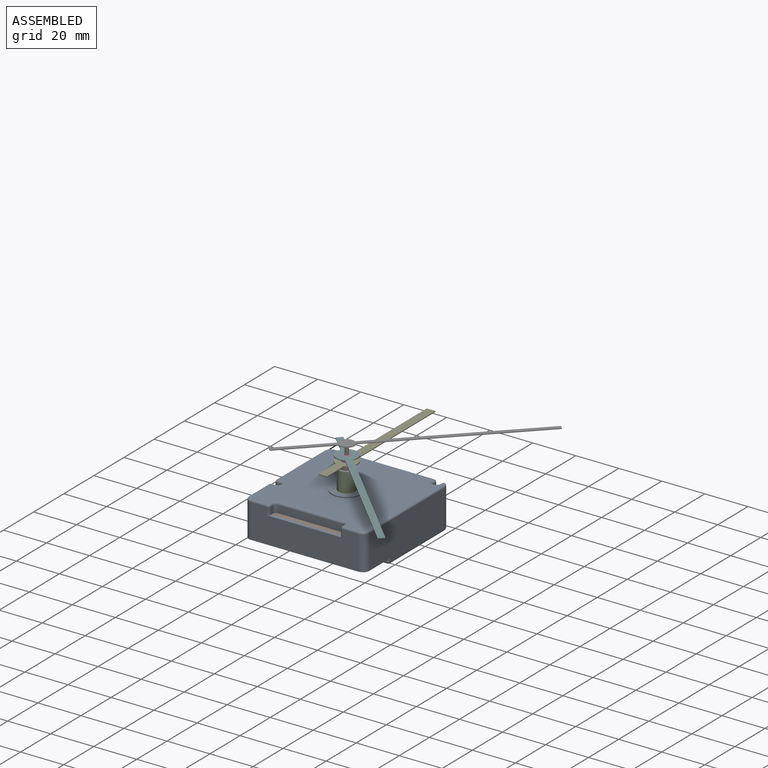
[diagram: assembled view]
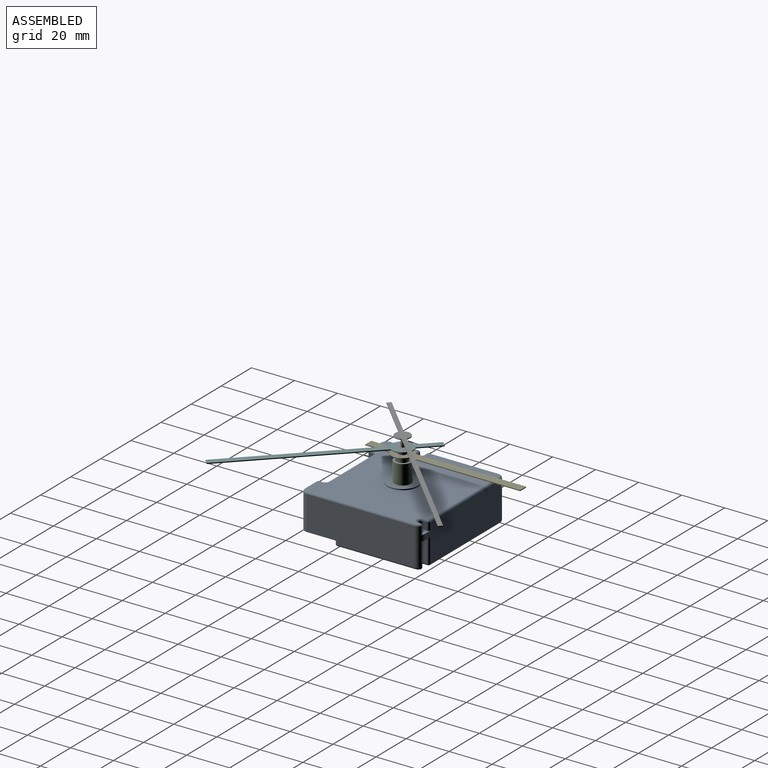
[diagram: assembled view, second angle]
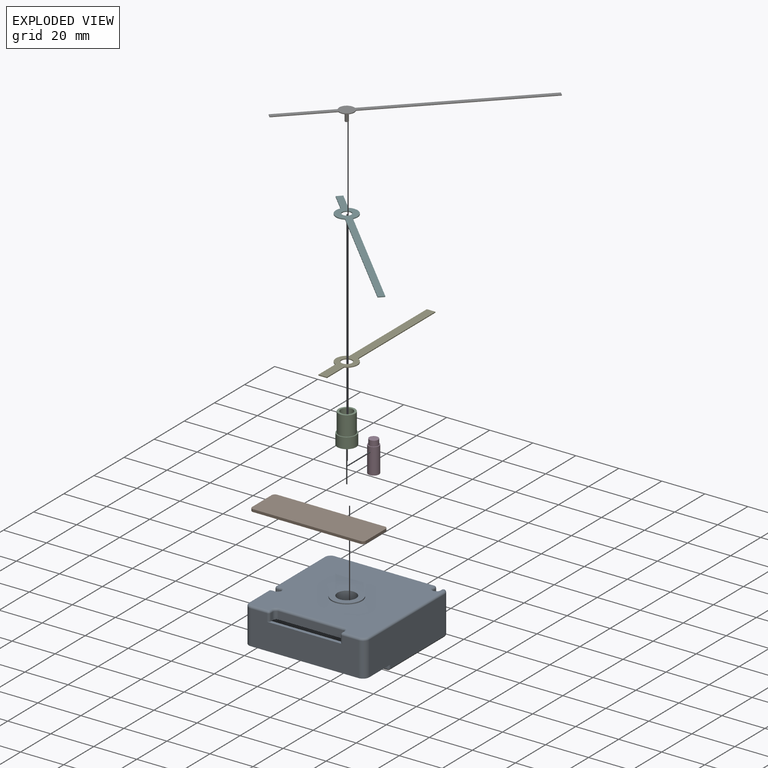
[diagram: exploded view]
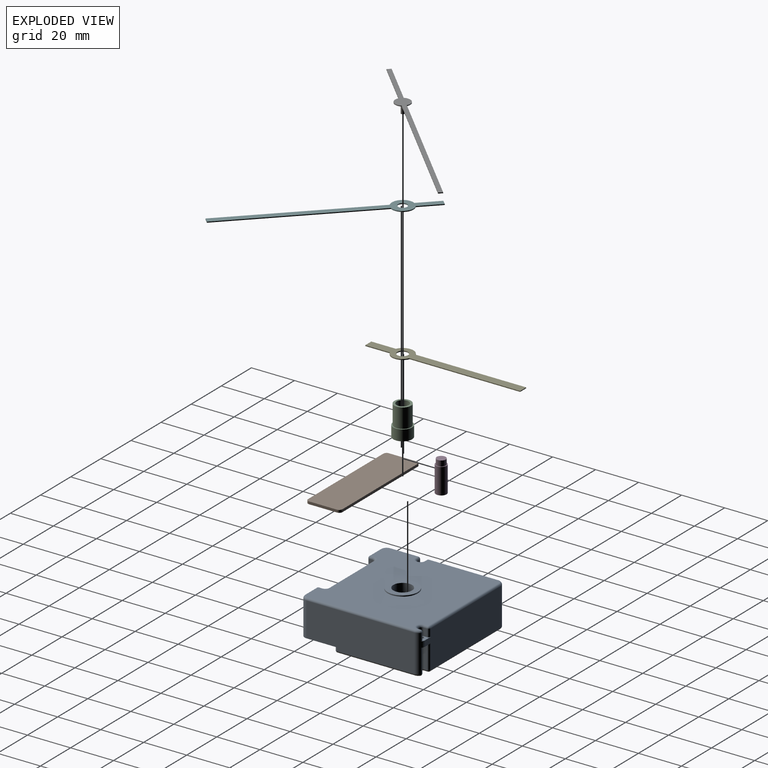
[diagram: exploded view, second angle]
FCSTD DOCUMENT  (FreeCAD 1.0R39109 (Git))
Label: TFA_Dostmann_60_3518_01
License: All rights reserved
LicenseURL: https://en.wikipedia.org/wiki/All_rights_reserved
objects: Sketcher::SketchObject×22, PartDesign::Pad×11, PartDesign::Pocket×11, PartDesign::Body×7, App::FeaturePython×7, PartDesign::Fillet×3, Spreadsheet::Sheet×1, Assembly::JointGroup×1, Assembly::AssemblyObject×1
note: 126 computed .brp shape members not serialized (recipe doc carries the construction recipe); baked Part::Feature solids carry a one-line shape summary decoded from their .brp

FEATURE [Spreadsheet::Sheet] Spreadsheet003  label="Dims"
  cells = A1='Dimension; B1='Value (mm); A2='Box Width; B2(Box_Width)==56 mm; A3='Box Length; B3(Box_Length)==56 mm; A4='Box Height; B4(Box_Height)==19.3 mm; A5='Axle X; B5(Axle_X)==23.2 mm; A6='Axle Y; B6(Axle_Y)==22.9 mm; A7='Axle Diameter; B7(Axle_Diameter)==7.7 mm; A8='Filet Side; B8(Filet_Side)==3 mm; A9='Thickness; B9(Thickness)==1.5 mm; A10='Hole Pocket Diameter; B10(Hole_Pocket_Diameter)==3 mm; A11='Hole Diameter; B11(Hole_Diameter)==2 mm; A12='Hole Position Depth; B12(Hole_Position_Depth)==4 mm; A13='Top Hole X; B13(Top_Hole_X)==5.6 mm; A14='Left Hole Y; B14(Left_Hole_Y)==20 mm; A15='Top Thickness; B15(Top_Thickness)==4.5 mm; A16='Slot Length; B16(Slot_Length)==4 mm; A17='Slot Width; B17(Slot_Width)==33 mm; A18='Slot Filet; B18(Slot_Filet)==1.5 mm; A19='Plastic Washer Thickness; B19(Plastic_Washer_Thickness)==0.5 mm; A20='Platic Washer Diameter; B20(Platic_Washer_Diameter)==14 mm; A21='Hole Support Thickness; B21(Hole_Support_Thickness)==2.7 mm; A22='Battery Slot Position; B22(Battery_Slot_Position)==40 mm; A23='Battery Slot Cut; B23(Battery_Slot_Cut)==2.5 mm; A24='Box Filet; B24(Box_Filet)==1 mm; A25='Box Filet Small; B25(Box_Filet_Small)==0.5 mm; A26='PCB Thickness; B26(PCB_Thickness)==1.2 mm; A27='Axle Length; B27(Axle_Length)==9 mm; A28='Axle Hole Diameter; B28(Axle_Hole_Diameter)==5.7 mm; A29='Axle Hour Diameter; B29(Axle_Hour_Diameter)==5 mm; A30='Axle Hour Extrusion; B30(Axle_Hour_Extrusion)==12 mm; A31='Axle Minute Diameter; B31(Axle_Minute_Diameter)==4.2 mm; A32='Axle Minute Extrusion; B32(Axle_Minute_Extrusion)==2.5 mm; A33='Hour Hand Width; B33(Hour_Hand_Width)==4 mm; A34='Hour Hand Length; B34(Hour_Hand_Length)==72 mm; A35='Hour Hand Hole Position; B35(Hour_Hand_Hole_Position)==56 mm; A36='Minute Hand Width; B36(Minute_Hand_Width)==3 mm; A37='Minute Hand Length; B37(Minute_Hand_Length)==92 mm; A38='Minute Hand Hole Position; B38(Minute_Hand_Hole_Position)==76 mm; A39='HM Hand Circle Diameter; B39(HM_Hand_Circle_Diameter)==10 mm; A40='Second Hand Width; B40(Second_Hand_Width)==2 mm; A41='Second Hand Length; B41(Second_Hand_Length)==113 mm; A42='Second Hand Hole Position; B42(Second_Hand_Hole_Position)==83 mm; A43='Second Hand Circle Diameter; B43(Second_Hand_Circle_Diameter)==7 mm; A44='Hand Thickness; B44(Hand_Thickness)==0.4 mm; A45='Second Hand Pivot Length; B45(Second_Hand_Pivot_Length)==6 mm - 1.5 mm; A46='Second Hand Pivot Diameter; B46(Second_Hand_Pivot_Diameter)==1.6 mm
FEATURE [Sketcher::SketchObject] Sketch
  ArcFitTolerance = 1e-06
  AttachmentSupport = -> [XY_Plane]
  FullyConstrained = true
  MakeInternals = false
  MapMode = 5
  expr: Constraints[19] = <<Dims>>.Filet_Side
  expr: Constraints[22] = <<Dims>>.Box_Width
  expr: Constraints[23] = <<Dims>>.Box_Length
  sketch-geometry (10):
    g0: LineSegment StartX=1.372e-13 StartY=53 StartZ=0 EndX=1.372e-13 EndY=3 EndZ=0
    g1: LineSegment StartX=3 StartY=0 StartZ=0 EndX=53 EndY=0 EndZ=0
    g2: LineSegment StartX=56 StartY=3 StartZ=0 EndX=56 EndY=53 EndZ=0
    g3: LineSegment StartX=53 StartY=56 StartZ=0 EndX=3 EndY=56 EndZ=0
    g4: ArcOfCircle CenterX=3 CenterY=53 CenterZ=0 NormalX=0 NormalY=0 NormalZ=1 AngleXU=0 Radius=3 StartAngle=1.5708 EndAngle=3.14159
    g5: ArcOfCircle CenterX=3 CenterY=3 CenterZ=0 NormalX=0 NormalY=0 NormalZ=1 AngleXU=0 Radius=3 StartAngle=3.14159 EndAngle=4.71239
    g6: ArcOfCircle CenterX=53 CenterY=3 CenterZ=0 NormalX=0 NormalY=0 NormalZ=1 AngleXU=0 Radius=3 StartAngle=4.71239 EndAngle=6.28319
    g7: ArcOfCircle CenterX=53 CenterY=53 CenterZ=0 NormalX=0 NormalY=0 NormalZ=1 AngleXU=0 Radius=3 StartAngle=-3.2e-14 EndAngle=1.5708
    g8: GeomPoint [constr] X=0 Y=56 Z=0
    g9: GeomPoint [constr] X=56 Y=0 Z=0
  constraints (24):
    c: Tangent(g0,g4) = -1.5708
    c: Tangent(g0,g5) = -1.5708
    c: Tangent(g1,g5) = -1.5708
    c: Tangent(g1,g6) = -1.5708
    c: Tangent(g2,g6) = -1.5708
    c: Tangent(g2,g7) = -1.5708
    c: Tangent(g3,g7) = -1.5708
    c: Tangent(g3,g4) = -1.5708
    c: Vertical(g0)
    c: Vertical(g2)
    c: Horizontal(g1)
    c: Horizontal(g3)
    c: Equal(g4,g5)
    c: Equal(g5,g6)
    c: Equal(g6,g7)
    c: PointOnObject(g8,g0)
    c: PointOnObject(g8,g3)
    c: PointOnObject(g9,g1)
    c: PointOnObject(g9,g2)
    c: Radius(g5) = 3
    c: PointOnObject(g8,g-2)
    c: PointOnObject(g9,g-1)
    c: DistanceX(g0,g2) = 56
    c: DistanceY(g1,g3) = 56
FEATURE [PartDesign::Pad] Pad
  Direction = (0,0,1)
  Length = 19.3
  Length2 = 10
  Profile = -> Sketch
  ReferenceAxis = -> Sketch [N_Axis]
  Refine = true
  Suppressed = false
  Type = 0
  expr: Length = <<Dims>>.Box_Height
FEATURE [Sketcher::SketchObject] Sketch001
  ArcFitTolerance = 1e-06
  AttachmentSupport = -> [Pad]
  ExternalGeometry = -> [Pad]
  FullyConstrained = true
  MakeInternals = false
  MapMode = 5
  Placement = pos=(0,0,19.3) rot=(0,0,1;0rad)
  expr: Constraints[0] = <<Dims>>.Hole_Pocket_Diameter
  expr: Constraints[12] = <<Dims>>.Hole_Position_Depth
  expr: Constraints[13] = <<Dims>>.Top_Hole_X
  sketch-geometry (5):
    g0: ArcOfCircle CenterX=51.9 CenterY=53.5 CenterZ=0 NormalX=0 NormalY=0 NormalZ=1 AngleXU=0 Radius=1.5 StartAngle=3.14159 EndAngle=6.28319
    g1: LineSegment StartX=53.4 StartY=53.5 StartZ=0 EndX=53.4 EndY=56 EndZ=0
    g2: LineSegment StartX=53.4 StartY=56 StartZ=0 EndX=50.4 EndY=56 EndZ=0
    g3: LineSegment StartX=50.4 StartY=56 StartZ=0 EndX=50.4 EndY=53.5 EndZ=0
    g4: LineSegment [constr] StartX=51.9 StartY=53.5 StartZ=0 EndX=51.9 EndY=52 EndZ=0
  constraints (14):
    c: Diameter(g0) = 3
    c: Coincident(g1,g2)
    c: Coincident(g2,g3)
    c: Horizontal(g2)
    c: Vertical(g1)
    c: Vertical(g3)
    c: PointOnObject(g1,g-3)
    c: Tangent(g3,g0) = -1.5708
    c: Tangent(g0,g1) = -1.5708
    c: Coincident(g4,g0)
    c: PointOnObject(g4,g0)
    c: Vertical(g4)
    c: DistanceY(g4,g2) = 4
    c: DistanceX(g0,g-4) = 5.6
FEATURE [PartDesign::Pocket] Pocket
  BaseFeature = -> Pad
  Direction = (0,0,-1)
  Length = 4.5
  Length2 = 5
  Profile = -> Sketch001
  ReferenceAxis = -> Sketch001 [N_Axis]
  Refine = true
  Suppressed = false
  Type = 0
  expr: Length = <<Dims>>.Top_Thickness
FEATURE [Sketcher::SketchObject] Sketch002
  ArcFitTolerance = 1e-06
  AttachmentSupport = -> [Pocket]
  ExternalGeometry = -> [Pocket]
  FullyConstrained = true
  MakeInternals = false
  MapMode = 5
  Placement = pos=(0,0,19.3) rot=(0,0,1;0rad)
  expr: Constraints[10] = <<Dims>>.Hole_Pocket_Diameter
  expr: Constraints[11] = <<Dims>>.Left_Hole_Y
  expr: Constraints[13] = <<Dims>>.Hole_Position_Depth
  sketch-geometry (5):
    g0: LineSegment StartX=0 StartY=20 StartZ=0 EndX=0 EndY=17 EndZ=0
    g1: LineSegment StartX=0 StartY=17 StartZ=0 EndX=2.5 EndY=17 EndZ=0
    g2: LineSegment StartX=2.5 StartY=20 StartZ=0 EndX=0 EndY=20 EndZ=0
    g3: ArcOfCircle CenterX=2.5 CenterY=18.5 CenterZ=0 NormalX=0 NormalY=0 NormalZ=1 AngleXU=0 Radius=1.5 StartAngle=4e-16 EndAngle=1.5708
    g4: ArcOfCircle CenterX=2.5 CenterY=18.5 CenterZ=0 NormalX=0 NormalY=0 NormalZ=1 AngleXU=0 Radius=1.5 StartAngle=4.71239 EndAngle=6.28319
  constraints (14):
    c: Coincident(g0,g1)
    c: Coincident(g2,g0)
    c: Vertical(g0)
    c: Horizontal(g1)
    c: Horizontal(g2)
    c: PointOnObject(g0,g-2)
    c: Tangent(g2,g3) = -1.5708
    c: Tangent(g1,g4) = -1.5708
    c: Coincident(g3,g4)
    c: Coincident(g4,g3)
    c: Diameter(g3) = 3
    c: DistanceY(g-3,g0) = 20
    c: Horizontal(g3,g3)
    c: DistanceX(g0,g3) = 4
FEATURE [PartDesign::Pocket] Pocket001
  BaseFeature = -> Pocket
  Direction = (0,0,-1)
  Length = 4.5
  Length2 = 5
  Profile = -> Sketch002
  ReferenceAxis = -> Sketch002 [N_Axis]
  Refine = true
  Suppressed = false
  Type = 0
  expr: Length = <<Dims>>.Top_Thickness
FEATURE [Sketcher::SketchObject] Sketch003
  ArcFitTolerance = 1e-06
  AttachmentSupport = -> [Pocket001]
  ExternalGeometry = -> [Pocket001]
  FullyConstrained = true
  MakeInternals = false
  MapMode = 5
  Placement = pos=(0,0,19.3) rot=(0,0,1;0rad)
  expr: Constraints[18] = <<Dims>>.Slot_Filet
  expr: Constraints[19] = <<Dims>>.Slot_Length
  expr: Constraints[8] = <<Dims>>.Slot_Width
  sketch-geometry (9):
    g0: LineSegment StartX=11.5 StartY=2.5 StartZ=0 EndX=11.5 EndY=0 EndZ=0
    g1: LineSegment StartX=11.5 StartY=0 StartZ=0 EndX=44.5 EndY=0 EndZ=0
    g2: LineSegment StartX=44.5 StartY=0 StartZ=0 EndX=44.5 EndY=2.5 EndZ=0
    g3: LineSegment StartX=43 StartY=4 StartZ=0 EndX=13 EndY=4 EndZ=0
    g4: GeomPoint X=28 Y=0 Z=0
    g5: ArcOfCircle CenterX=43 CenterY=2.5 CenterZ=0 NormalX=0 NormalY=0 NormalZ=1 AngleXU=0 Radius=1.5 StartAngle=2e-16 EndAngle=1.5708
    g6: GeomPoint [constr] X=44.5 Y=4 Z=0
    g7: ArcOfCircle CenterX=13 CenterY=2.5 CenterZ=0 NormalX=0 NormalY=0 NormalZ=1 AngleXU=0 Radius=1.5 StartAngle=1.5708 EndAngle=3.14159
    g8: GeomPoint [constr] X=11.5 Y=4 Z=0
  constraints (20):
    c: Coincident(g0,g1)
    c: Coincident(g1,g2)
    c: Vertical(g0)
    c: Vertical(g2)
    c: Horizontal(g1)
    c: Horizontal(g3)
    c: Symmetric(g1,g1,g4)
    c: Symmetric(g-3,g-3,g4)
    c: DistanceX(g0,g1) = 33
    c: PointOnObject(g6,g2)
    c: PointOnObject(g6,g3)
    c: Tangent(g2,g5) = -1.5708
    c: Tangent(g3,g5) = -1.5708
    c: PointOnObject(g8,g0)
    c: PointOnObject(g8,g3)
    c: Tangent(g0,g7) = -1.5708
    c: Tangent(g3,g7) = -1.5708
    c: Equal(g5,g7)
    c: Radius(g5) = 1.5
    c: DistanceY(g1,g3) = 4
FEATURE [PartDesign::Pocket] Pocket002
  BaseFeature = -> Pocket001
  Direction = (0,0,-1)
  Length = 4.5
  Length2 = 5
  Profile = -> Sketch003
  ReferenceAxis = -> Sketch003 [N_Axis]
  Refine = true
  Suppressed = false
  Type = 0
  expr: Length = <<Dims>>.Top_Thickness
FEATURE [Sketcher::SketchObject] Sketch004
  ArcFitTolerance = 1e-06
  AttachmentSupport = -> [Pocket002]
  ExternalGeometry = -> [Pocket002]
  FullyConstrained = true
  MakeInternals = false
  MapMode = 5
  Placement = pos=(0,0,19.3) rot=(0,0,1;0rad)
  expr: Constraints[1] = <<Dims>>.Axle_Diameter + 1 mm
  sketch-geometry (1):
    g0: Circle CenterX=28 CenterY=28 CenterZ=0 NormalX=0 NormalY=0 NormalZ=1 AngleXU=0 Radius=4.35
  constraints (2):
    c: Symmetric(g-3,g-4,g0)
    c: Diameter(g0) = 8.7
FEATURE [PartDesign::Pocket] Pocket003
  BaseFeature = -> Pocket002
  Direction = (0,0,-1)
  Length = 4.5
  Length2 = 5
  Profile = -> Sketch004
  ReferenceAxis = -> Sketch004 [N_Axis]
  Refine = true
  Suppressed = false
  Type = 0
  expr: Length = <<Dims>>.Top_Thickness
FEATURE [PartDesign::Fillet] Fillet
  Base = -> Pocket003 [Edge25,Edge19,Edge3,Edge28,Edge24,Edge6,Edge4,Edge33,Edge35,Edge54,Edge53,Edge48,Edge46,Edge18,Edge20,Edge23,Edge22,Edge21,Edge7,Edge30,Edge26,Edge17,Edge34,Edge36,Edge32,Edge31,Edge29,Edge27]
  BaseFeature = -> Pocket003
  Radius = 1
  Refine = true
  SupportTransform = false
  Suppressed = false
  UseAllEdges = false
  expr: Radius = <<Dims>>.Box_Filet
FEATURE [Sketcher::SketchObject] Sketch005
  ArcFitTolerance = 1e-06
  AttachmentSupport = -> [Fillet]
  ExternalGeometry = -> [Fillet]
  FullyConstrained = true
  MakeInternals = false
  MapMode = 5
  Placement = pos=(0,0,19.3) rot=(0,0,1;0rad)
  expr: Constraints[0] = <<Dims>>.Platic_Washer_Diameter
  sketch-geometry (2):
    g0: Circle CenterX=28 CenterY=28 CenterZ=0 NormalX=0 NormalY=0 NormalZ=1 AngleXU=0 Radius=7
    g1: Circle CenterX=28 CenterY=28 CenterZ=0 NormalX=0 NormalY=0 NormalZ=1 AngleXU=0 Radius=4.35
  constraints (4):
    c: Diameter(g0) = 14
    c: Coincident(g0,g-3)
    c: Coincident(g1,g0)
    c: Equal(g-3,g1)
FEATURE [PartDesign::Pad] Pad001
  BaseFeature = -> Fillet
  Direction = (0,0,1)
  Length = 0.5
  Length2 = 10
  Profile = -> Sketch005
  ReferenceAxis = -> Sketch005 [N_Axis]
  Refine = true
  Suppressed = false
  Type = 0
  expr: Length = <<Dims>>.Plastic_Washer_Thickness
FEATURE [Sketcher::SketchObject] Sketch006
  ArcFitTolerance = 1e-06
  AttachmentSupport = -> [Pad001]
  ExternalGeometry = -> [Pocket]
  FullyConstrained = true
  MakeInternals = false
  MapMode = 5
  Placement = pos=(0,0,0) rot=(1,0,0;3.14159rad)
  expr: Constraints[10] = Sketch002.Constraints[10]
  expr: Constraints[12] = Sketch002.Constraints[13]
  expr: Constraints[13] = <<Dims>>.Left_Hole_Y
  sketch-geometry (5):
    g0: LineSegment StartX=0 StartY=-17 StartZ=0 EndX=0 EndY=-20 EndZ=0
    g1: LineSegment StartX=0 StartY=-20 StartZ=0 EndX=2.5 EndY=-20 EndZ=0
    g2: LineSegment StartX=2.5 StartY=-17 StartZ=0 EndX=0 EndY=-17 EndZ=0
    g3: ArcOfCircle CenterX=2.5 CenterY=-18.5 CenterZ=0 NormalX=0 NormalY=0 NormalZ=1 AngleXU=0 Radius=1.5 StartAngle=1e-16 EndAngle=1.5708
    g4: ArcOfCircle CenterX=2.5 CenterY=-18.5 CenterZ=0 NormalX=0 NormalY=0 NormalZ=1 AngleXU=0 Radius=1.5 StartAngle=4.71239 EndAngle=6.28319
  constraints (14):
    c: Coincident(g0,g1)
    c: Coincident(g2,g0)
    c: Vertical(g0)
    c: Horizontal(g1)
    c: Horizontal(g2)
    c: PointOnObject(g0,g-2)
    c: Tangent(g2,g3) = -1.5708
    c: Tangent(g1,g4) = -1.5708
    c: Coincident(g3,g4)
    c: Coincident(g4,g3)
    c: Diameter(g3) = 3
    c: Horizontal(g3,g3)
    c: DistanceX(g0,g3) = 4
    c: DistanceY(g0,g-3) = 20
FEATURE [PartDesign::Pocket] Pocket004
  BaseFeature = -> Pad001
  Direction = (0,0,1)
  Length = 0
  Length2 = 5
  Offset = -2.7
  Profile = -> Sketch006
  ReferenceAxis = -> Sketch006 [N_Axis]
  Refine = true
  Suppressed = false
  Type = 3
  UpToFace = -> Pad001 [Face9]
  expr: Offset = -<<Dims>>.Hole_Support_Thickness
FEATURE [Sketcher::SketchObject] MirroredSketch
  ArcFitTolerance = 1e-06
  AttachmentSupport = -> [Pocket004]
  ExternalGeometry = -> [Sketch001]
  FullyConstrained = true
  MakeInternals = false
  MapMode = 5
  Placement = pos=(0,0,0) rot=(1,0,0;3.14159rad)
  sketch-geometry (5):
    g0: ArcOfCircle CenterX=51.9 CenterY=-53.5 CenterZ=0 NormalX=0 NormalY=0 NormalZ=1 AngleXU=0 Radius=1.5 StartAngle=4.16e-14 EndAngle=3.14159
    g1: LineSegment StartX=53.4 StartY=-53.5 StartZ=0 EndX=53.4 EndY=-56 EndZ=0
    g2: LineSegment StartX=53.4 StartY=-56 StartZ=0 EndX=50.4 EndY=-56 EndZ=0
    g3: LineSegment StartX=50.4 StartY=-56 StartZ=0 EndX=50.4 EndY=-53.5 EndZ=0
    g4: LineSegment [constr] StartX=51.9 StartY=-53.5 StartZ=0 EndX=51.9 EndY=-52 EndZ=0
  constraints (12):
    c: Diameter(g0) = 3
    c: Coincident(g1,g2)
    c: Coincident(g2,g3)
    c: Horizontal(g2)
    c: Vertical(g1)
    c: Tangent(g3,g0) = 1.5708
    c: Tangent(g0,g1) = 1.5708
    c: Coincident(g4,g0)
    c: PointOnObject(g4,g0)
    c: Vertical(g4)
    c: Coincident(g-3,g2)
    c: Coincident(g-4,g0)
FEATURE [PartDesign::Pocket] Pocket005
  BaseFeature = -> Pocket004
  Direction = (0,0,1)
  Length = 0
  Length2 = 5
  Offset = -2.7
  Profile = -> MirroredSketch
  ReferenceAxis = -> MirroredSketch [N_Axis]
  Refine = true
  Suppressed = false
  Type = 3
  UpToFace = -> Pocket004 [Face58]
  expr: Offset = -<<Dims>>.Hole_Support_Thickness
FEATURE [Sketcher::SketchObject] Sketch007
  ArcFitTolerance = 1e-06
  AttachmentSupport = -> [Pocket005]
  ExternalGeometry = -> [Pocket005]
  FullyConstrained = true
  MakeInternals = false
  MapMode = 5
  Placement = pos=(0,0,0) rot=(1,0,0;3.14159rad)
  expr: Constraints[16] = <<Dims>>.Thickness
  expr: Constraints[9] = <<Dims>>.Battery_Slot_Position
  sketch-geometry (6):
    g0: LineSegment StartX=56 StartY=-16 StartZ=0 EndX=56 EndY=0 EndZ=0
    g1: LineSegment StartX=56 StartY=0 StartZ=0 EndX=0 EndY=0 EndZ=0
    g2: LineSegment StartX=0 StartY=0 StartZ=0 EndX=0 EndY=-15.5 EndZ=0
    g3: LineSegment StartX=4.15831 StartY=-16 StartZ=0 EndX=56 EndY=-16 EndZ=0
    g4: ArcOfCircle CenterX=2.5 CenterY=-18.5 CenterZ=0 NormalX=0 NormalY=0 NormalZ=1 AngleXU=0 Radius=3 StartAngle=0.985111 EndAngle=1.5708
    g5: LineSegment StartX=0 StartY=-15.5 StartZ=0 EndX=2.5 EndY=-15.5 EndZ=0
  constraints (17):
    c: Coincident(g0,g1)
    c: Coincident(g1,g2)
    c: Coincident(g3,g0)
    c: Vertical(g0)
    c: Vertical(g2)
    c: Horizontal(g1)
    c: Horizontal(g3)
    c: PointOnObject(g0,g-7)
    c: Coincident(g1,g-1)
    c: DistanceY(g-10,g0) = 40
    c: Coincident(g4,g-9)
    c: Coincident(g5,g2)
    c: Coincident(g5,g4)
    c: Horizontal(g5)
    c: Vertical(g4,g-9)
    c: Coincident(g4,g3)
    c: DistanceY(g-9,g4) = 1.5
FEATURE [PartDesign::Pocket] Pocket006
  BaseFeature = -> Pocket005
  Direction = (0,0,1)
  Length = 2.5
  Length2 = 5
  Profile = -> Sketch007
  ReferenceAxis = -> Sketch007 [N_Axis]
  Refine = true
  Suppressed = false
  Type = 0
  expr: Length = <<Dims>>.Battery_Slot_Cut
FEATURE [Sketcher::SketchObject] Sketch008
  ArcFitTolerance = 1e-06
  AttachmentSupport = -> [Pocket006]
  ExternalGeometry = -> [Pocket006]
  FullyConstrained = true
  MakeInternals = false
  MapMode = 5
  Placement = pos=(0,0,2.5) rot=(1,0,0;3.14159rad)
  expr: Constraints[2] = <<Dims>>.Thickness
  sketch-geometry (8):
    g0: ArcOfCircle CenterX=2.5 CenterY=-18.5 CenterZ=0 NormalX=0 NormalY=0 NormalZ=1 AngleXU=0 Radius=3 StartAngle=0.985111 EndAngle=1.5708
    g1: LineSegment StartX=2.5 StartY=-15.5 StartZ=0 EndX=1.5 EndY=-15.5 EndZ=0
    g2: ArcOfCircle CenterX=3 CenterY=-3 CenterZ=0 NormalX=0 NormalY=0 NormalZ=1 AngleXU=0 Radius=1.5 StartAngle=1.5708 EndAngle=3.14159
    g3: LineSegment StartX=1.5 StartY=-15.5 StartZ=0 EndX=1.5 EndY=-3 EndZ=0
    g4: ArcOfCircle CenterX=53 CenterY=-3 CenterZ=0 NormalX=0 NormalY=0 NormalZ=1 AngleXU=0 Radius=1.5 StartAngle=0 EndAngle=1.5708
    g5: LineSegment StartX=3 StartY=-1.5 StartZ=0 EndX=53 EndY=-1.5 EndZ=0
    g6: LineSegment StartX=54.5 StartY=-3 StartZ=0 EndX=54.5 EndY=-16 EndZ=0
    g7: LineSegment StartX=4.15831 StartY=-16 StartZ=0 EndX=54.5 EndY=-16 EndZ=0
  constraints (23):
    c: Coincident(g0,g-4)
    c: Coincident(g0,g-5)
    c: DistanceX(g-6,g1) = 1.5
    c: Coincident(g2,g-7)
    c: Coincident(g3,g1)
    c: Coincident(g3,g2)
    c: Vertical(g3)
    c: Coincident(g4,g-9)
    c: Coincident(g5,g2)
    c: Coincident(g5,g4)
    c: Horizontal(g5)
    c: Coincident(g6,g4)
    c: PointOnObject(g6,g-3)
    c: Vertical(g6)
    c: Coincident(g7,g0)
    c: Coincident(g7,g6)
    c: Horizontal(g7)
    c: Tangent(g6,g4,g4) = 1.5708
    c: Tangent(g4,g5,g4) = 1.5708
    c: Tangent(g5,g2,g2) = 1.5708
    c: Tangent(g2,g3,g2) = 1.5708
    c: Coincident(g1,g0)
    c: Horizontal(g1)
FEATURE [PartDesign::Pocket] Pocket007
  BaseFeature = -> Pocket006
  Direction = (0,0,1)
  Length = 0
  Length2 = 5
  Profile = -> Sketch008
  ReferenceAxis = -> Sketch008 [N_Axis]
  Refine = true
  Suppressed = false
  Type = 3
  UpToFace = -> Pocket006 [Face54]
FEATURE [PartDesign::Fillet] Fillet001
  Base = -> Pocket007 [Edge138,Edge147,Edge132,Edge177,Edge178,Edge179,Edge101,Edge97,Edge180,Edge96,Edge131,Edge102]
  BaseFeature = -> Pocket007
  Radius = 1
  Refine = true
  SupportTransform = false
  Suppressed = false
  UseAllEdges = false
  expr: Radius = <<Dims>>.Box_Filet
FEATURE [PartDesign::Fillet] Fillet002
  Base = -> Fillet001 [Edge67,Edge166,Edge134,Edge69,Edge71,Edge73,Edge138,Edge79,Edge80,Edge77,Edge128,Edge75]
  BaseFeature = -> Fillet001
  Radius = 0.5
  Refine = true
  SupportTransform = false
  Suppressed = false
  UseAllEdges = false
  expr: Radius = <<Dims>>.Box_Filet_Small
FEATURE [Sketcher::SketchObject] Sketch009
  ArcFitTolerance = 1e-06
  AttachmentSupport = -> [Fillet002]
  ExternalGeometry = -> [Fillet002]
  FullyConstrained = true
  MakeInternals = false
  MapMode = 5
  Placement = pos=(0,0,12.1) rot=(1,0,0;3.14159rad)
  expr: Constraints[0] = <<Dims>>.Hole_Diameter
  sketch-geometry (1):
    g0: Circle CenterX=2.5 CenterY=-18.5 CenterZ=0 NormalX=0 NormalY=0 NormalZ=1 AngleXU=0 Radius=1
  constraints (2):
    c: Diameter(g0) = 2
    c: Coincident(g0,g-3)
FEATURE [PartDesign::Pocket] Pocket008
  BaseFeature = -> Fillet002
  Direction = (0,0,1)
  Length = 5
  Length2 = 5
  Profile = -> Sketch009
  ReferenceAxis = -> Sketch009 [N_Axis]
  Refine = true
  Suppressed = false
  Type = 1
FEATURE [Sketcher::SketchObject] Sketch010
  ArcFitTolerance = 1e-06
  AttachmentSupport = -> [Pocket008]
  ExternalGeometry = -> [Pocket008]
  FullyConstrained = true
  MakeInternals = false
  MapMode = 5
  Placement = pos=(0,0,12.1) rot=(1,0,0;3.14159rad)
  expr: Constraints[0] = <<Dims>>.Hole_Diameter
  sketch-geometry (1):
    g0: Circle CenterX=51.9 CenterY=-53.5 CenterZ=0 NormalX=0 NormalY=0 NormalZ=1 AngleXU=0 Radius=1
  constraints (2):
    c: Diameter(g0) = 2
    c: Coincident(g0,g-3)
FEATURE [PartDesign::Pocket] Pocket009
  BaseFeature = -> Pocket008
  Direction = (0,0,1)
  Length = 5
  Length2 = 5
  Profile = -> Sketch010
  ReferenceAxis = -> Sketch010 [N_Axis]
  Refine = true
  Suppressed = false
  Type = 1
FEATURE [PartDesign::Body] Body  label="Case"
  AllowCompound = false
  Group = -> [Sketch,Pad,Sketch001,Pocket,Sketch002,Pocket001,Sketch003,Pocket002,Sketch004,Pocket003,Fillet,Sketch005,Pad001,Sketch006,Pocket004,MirroredSketch,Pocket005,Sketch007,Pocket006,Sketch008,Pocket007,Fillet001,Fillet002,Sketch009,Pocket008,Sketch010,Pocket009]
  Origin = -> Origin
  Tip = -> Pocket009
FEATURE [Sketcher::SketchObject] Sketch011
  ArcFitTolerance = 1e-06
  AttachmentSupport = -> [XY_Plane001]
  FullyConstrained = true
  MakeInternals = false
  MapMode = 5
  expr: Constraints[19] = <<Dims>>.Filet_Side - <<Dims>>.Thickness
  expr: Constraints[20] = <<Dims>>.Thickness
  expr: Constraints[21] = <<Dims>>.Thickness
  expr: Constraints[22] = <<Dims>>.Box_Length - <<Dims>>.Battery_Slot_Position
  expr: Constraints[23] = <<Dims>>.Box_Width - 2 * <<Dims>>.Thickness
  sketch-geometry (10):
    g0: LineSegment StartX=1.5 StartY=16 StartZ=0 EndX=1.5 EndY=3 EndZ=0
    g1: LineSegment StartX=3 StartY=1.5 StartZ=0 EndX=53 EndY=1.5 EndZ=0
    g2: LineSegment StartX=54.5 StartY=3 StartZ=0 EndX=54.5 EndY=16 EndZ=0
    g3: LineSegment StartX=53 StartY=17.5 StartZ=0 EndX=3 EndY=17.5 EndZ=0
    g4: ArcOfCircle CenterX=3 CenterY=16 CenterZ=0 NormalX=0 NormalY=0 NormalZ=1 AngleXU=0 Radius=1.5 StartAngle=1.5708 EndAngle=3.14159
    g5: ArcOfCircle CenterX=3 CenterY=3 CenterZ=0 NormalX=0 NormalY=0 NormalZ=1 AngleXU=0 Radius=1.5 StartAngle=3.14159 EndAngle=4.71239
    g6: ArcOfCircle CenterX=53 CenterY=3 CenterZ=0 NormalX=0 NormalY=0 NormalZ=1 AngleXU=0 Radius=1.5 StartAngle=4.71239 EndAngle=6.28319
    g7: ArcOfCircle CenterX=53 CenterY=16 CenterZ=0 NormalX=0 NormalY=0 NormalZ=1 AngleXU=0 Radius=1.5 StartAngle=0 EndAngle=1.5708
    g8: GeomPoint [constr] X=1.5 Y=17.5 Z=0
    g9: GeomPoint [constr] X=54.5 Y=1.5 Z=0
  constraints (24):
    c: Tangent(g0,g4) = -1.5708
    c: Tangent(g0,g5) = -1.5708
    c: Tangent(g1,g5) = -1.5708
    c: Tangent(g1,g6) = -1.5708
    c: Tangent(g2,g6) = -1.5708
    c: Tangent(g2,g7) = -1.5708
    c: Tangent(g3,g7) = -1.5708
    c: Tangent(g3,g4) = -1.5708
    c: Vertical(g0)
    c: Vertical(g2)
    c: Horizontal(g1)
    c: Horizontal(g3)
    c: Equal(g4,g5)
    c: Equal(g5,g6)
    c: Equal(g6,g7)
    c: PointOnObject(g8,g0)
    c: PointOnObject(g8,g3)
    c: PointOnObject(g9,g1)
    c: PointOnObject(g9,g2)
    c: Radius(g5) = 1.5
    c: DistanceY(g-1,g1) = 1.5
    c: DistanceX(g-1,g0) = 1.5
    c: DistanceY(g1,g3) = 16
    c: DistanceX(g0,g2) = 53
FEATURE [PartDesign::Pad] Pad002
  Direction = (0,0,1)
  Length = 1.2
  Length2 = 10
  Profile = -> Sketch011
  ReferenceAxis = -> Sketch011 [N_Axis]
  Refine = true
  Suppressed = false
  Type = 0
  expr: Length = <<Dims>>.PCB_Thickness
FEATURE [PartDesign::Body] Body001  label="PCB"
  AllowCompound = false
  Group = -> [Sketch011,Pad002]
  Origin = -> Origin001
  Placement = pos=(-2.071e-13,-2.129e-13,13.6) rot=(0,0,1;0rad)
  Tip = -> Pad002
FEATURE [App::FeaturePython] GroundedJoint  # Assembly grounded joint (typed FeaturePython)
  ObjectToGround = -> Body
FEATURE [App::FeaturePython] Joint  label="Fixed"  # Assembly joint (typed FeaturePython)
  Activated = true
  AngleMax = 0
  AngleMin = 0
  Detach1 = false
  Detach2 = false
  Distance = 0
  Distance2 = 0
  EnableAngleMax = false
  EnableAngleMin = false
  EnableLengthMax = false
  EnableLengthMin = false
  JointType = 0 (Fixed)
  LengthMax = 0
  LengthMin = 0
  Placement1 = pos=(53,1.5,14.8) rot=(0,0,1;0rad)
  Placement2 = pos=(53,1.5,1.2) rot=(0,0,1;0rad)
  Reference1 = -> Assembly [Body.Vertex37,Body.Vertex37]
  Reference2 = -> Assembly [Body001.Vertex8,Body001.Vertex8]
FEATURE [Sketcher::SketchObject] Sketch012
  ArcFitTolerance = 1e-06
  AttachmentSupport = -> [XY_Plane003]
  FullyConstrained = true
  MakeInternals = false
  MapMode = 5
  expr: Constraints[0] = <<Dims>>.Axle_Diameter + 1 mm
  sketch-geometry (1):
    g0: Circle CenterX=0 CenterY=0 CenterZ=0 NormalX=0 NormalY=0 NormalZ=1 AngleXU=0 Radius=4.35
  constraints (2):
    c: Diameter(g0) = 8.7
    c: Coincident(g0,g-1)
FEATURE [PartDesign::Pad] Pad003
  Direction = (0,0,1)
  Length = 5
  Length2 = 10
  Profile = -> Sketch012
  ReferenceAxis = -> Sketch012 [N_Axis]
  Refine = true
  Suppressed = false
  Type = 0
  expr: Length = <<Dims>>.Top_Thickness + <<Dims>>.Plastic_Washer_Thickness
FEATURE [Sketcher::SketchObject] Sketch013
  ArcFitTolerance = 1e-06
  AttachmentSupport = -> [Pad003]
  FullyConstrained = true
  MakeInternals = false
  MapMode = 5
  Placement = pos=(0,0,5) rot=(0,0,1;0rad)
  expr: Constraints[0] = <<Dims>>.Axle_Diameter
  sketch-geometry (1):
    g0: Circle CenterX=0 CenterY=0 CenterZ=0 NormalX=0 NormalY=0 NormalZ=1 AngleXU=0 Radius=3.85
  constraints (2):
    c: Diameter(g0) = 7.7
    c: Coincident(g0,g-1)
FEATURE [PartDesign::Pad] Pad004
  BaseFeature = -> Pad003
  Direction = (0,0,1)
  Length = 9
  Length2 = 10
  Profile = -> Sketch013
  ReferenceAxis = -> Sketch013 [N_Axis]
  Refine = true
  Suppressed = false
  Type = 0
  expr: Length = <<Dims>>.Axle_Length
FEATURE [Sketcher::SketchObject] Sketch014
  ArcFitTolerance = 1e-06
  AttachmentSupport = -> [Pad004]
  FullyConstrained = true
  MakeInternals = false
  MapMode = 5
  Placement = pos=(0,0,14) rot=(0,0,1;0rad)
  expr: Constraints[0] = <<Dims>>.Axle_Hole_Diameter
  sketch-geometry (1):
    g0: Circle CenterX=0 CenterY=0 CenterZ=0 NormalX=0 NormalY=0 NormalZ=1 AngleXU=0 Radius=2.85
  constraints (2):
    c: Diameter(g0) = 5.7
    c: Coincident(g0,g-1)
FEATURE [PartDesign::Pocket] Pocket010
  BaseFeature = -> Pad004
  Direction = (0,0,-1)
  Length = 9
  Length2 = 5
  Profile = -> Sketch014
  ReferenceAxis = -> Sketch014 [N_Axis]
  Refine = true
  Suppressed = false
  Type = 0
  expr: Length = <<Dims>>.Axle_Length
FEATURE [PartDesign::Body] Body002  label="Axle"
  AllowCompound = false
  Group = -> [Sketch012,Pad003,Sketch013,Pad004,Sketch014,Pocket010]
  Origin = -> Origin003
  Placement = pos=(28,28,14.8) rot=(0,0,1;0rad)
  Tip = -> Pocket010
FEATURE [App::FeaturePython] Joint001  label="Fixed001"  # Assembly joint (typed FeaturePython)
  Activated = true
  AngleMax = 0
  AngleMin = 0
  Detach1 = false
  Detach2 = false
  Distance = 0
  Distance2 = 0
  EnableAngleMax = false
  EnableAngleMin = false
  EnableLengthMax = false
  EnableLengthMin = false
  JointType = 0 (Fixed)
  LengthMax = 0
  LengthMin = 0
  Placement2 = pos=(28,28,14.8) rot=(0,0,1;0rad)
  Reference1 = -> Assembly [Body002.Edge2,Body002.Edge2]
  Reference2 = -> Assembly [Body.Edge287,Body.Edge287]
FEATURE [Sketcher::SketchObject] Sketch015
  ArcFitTolerance = 1e-06
  AttachmentSupport = -> [XY_Plane004]
  FullyConstrained = true
  MakeInternals = false
  MapMode = 5
  expr: Constraints[0] = <<Dims>>.Axle_Hour_Diameter
  sketch-geometry (1):
    g0: Circle CenterX=0 CenterY=0 CenterZ=0 NormalX=0 NormalY=0 NormalZ=1 AngleXU=0 Radius=2.5
  constraints (2):
    c: Diameter(g0) = 5
    c: Coincident(g0,g-1)
FEATURE [PartDesign::Pad] Pad005
  Direction = (0,0,1)
  Length = 12
  Length2 = 10
  Profile = -> Sketch015
  ReferenceAxis = -> Sketch015 [N_Axis]
  Refine = true
  Suppressed = false
  Type = 0
  expr: Length = <<Dims>>.Axle_Hour_Extrusion
FEATURE [Sketcher::SketchObject] Sketch016
  ArcFitTolerance = 1e-06
  AttachmentSupport = -> [Pad005]
  FullyConstrained = true
  MakeInternals = false
  MapMode = 5
  Placement = pos=(0,0,12) rot=(0,0,1;0rad)
  expr: Constraints[0] = <<Dims>>.Axle_Minute_Diameter
  sketch-geometry (1):
    g0: Circle CenterX=0 CenterY=0 CenterZ=0 NormalX=0 NormalY=0 NormalZ=1 AngleXU=0 Radius=2.1
  constraints (2):
    c: Diameter(g0) = 4.2
    c: Coincident(g0,g-1)
FEATURE [PartDesign::Pad] Pad006
  BaseFeature = -> Pad005
  Direction = (0,0,1)
  Length = 2.5
  Length2 = 10
  Profile = -> Sketch016
  ReferenceAxis = -> Sketch016 [N_Axis]
  Refine = true
  Suppressed = false
  Type = 0
  expr: Length = <<Dims>>.Axle_Minute_Extrusion
FEATURE [PartDesign::Body] Body003  label="HandAxle"
  AllowCompound = false
  Group = -> [Sketch015,Pad005,Sketch016,Pad006]
  Origin = -> Origin004
  Placement = pos=(28,28,19.8) rot=(0,0,1;0rad)
  Tip = -> Pad006
FEATURE [App::FeaturePython] Joint002  label="Revolute"  # Assembly joint (typed FeaturePython)
  Activated = true
  AngleMax = 0
  AngleMin = 0
  Detach1 = false
  Detach2 = false
  Distance = 0
  Distance2 = 0
  EnableAngleMax = false
  EnableAngleMin = false
  EnableLengthMax = false
  EnableLengthMin = false
  JointType = 1 (Revolute)
  LengthMax = 0
  LengthMin = 0
  Placement2 = pos=(0,0,5) rot=(0,0,1;0rad)
  Reference1 = -> Assembly [Body003.Edge2,Body003.Edge2]
  Reference2 = -> Assembly [Body002.Edge9,Body002.Edge9]
FEATURE [Sketcher::SketchObject] Sketch017
  ArcFitTolerance = 1e-06
  AttachmentSupport = -> [XY_Plane005]
  FullyConstrained = true
  MakeInternals = false
  MapMode = 5
  expr: Constraints[20] = <<Dims>>.Hour_Hand_Width
  expr: Constraints[21] = <<Dims>>.Hour_Hand_Hole_Position
  expr: Constraints[24] = <<Dims>>.Hour_Hand_Length
  expr: Constraints[25] = <<Dims>>.Axle_Hour_Diameter
  expr: Constraints[8] = <<Dims>>.HM_Hand_Circle_Diameter
  sketch-geometry (9):
    g0: LineSegment StartX=-2 StartY=56 StartZ=0 EndX=-2 EndY=4.58258 EndZ=0
    g1: LineSegment StartX=-2 StartY=-16 StartZ=0 EndX=2 EndY=-16 EndZ=0
    g2: LineSegment StartX=2 StartY=-16 StartZ=0 EndX=2 EndY=-4.58258 EndZ=0
    g3: LineSegment StartX=2 StartY=56 StartZ=0 EndX=-2 EndY=56 EndZ=0
    g4: ArcOfCircle CenterX=0 CenterY=0 CenterZ=0 NormalX=0 NormalY=0 NormalZ=1 AngleXU=0 Radius=5 StartAngle=1.98231 EndAngle=4.30087
    g5: ArcOfCircle CenterX=0 CenterY=0 CenterZ=0 NormalX=0 NormalY=0 NormalZ=1 AngleXU=0 Radius=5 StartAngle=5.12391 EndAngle=7.44246
    g6: LineSegment StartX=-2 StartY=-4.58258 StartZ=0 EndX=-2 EndY=-16 EndZ=0
    g7: LineSegment StartX=2 StartY=4.58258 StartZ=0 EndX=2 EndY=56 EndZ=0
    g8: Circle CenterX=0 CenterY=0 CenterZ=0 NormalX=0 NormalY=0 NormalZ=1 AngleXU=0 Radius=2.5
  constraints (27):
    c: Coincident(g6,g1)
    c: Coincident(g1,g2)
    c: Coincident(g7,g3)
    c: Coincident(g3,g0)
    c: Vertical(g0)
    c: Vertical(g2)
    c: Horizontal(g1)
    c: Symmetric(g0,g7,g-2)
    c: Diameter(g4) = 10
    c: Coincident(g4,g-1)
    c: PointOnObject(g5,g7)
    c: Equal(g4,g5)
    c: PointOnObject(g4,g6)
    c: Coincident(g4,g5)
    c: Coincident(g0,g4)
    c: PointOnObject(g6,g4)
    c: Coincident(g2,g5)
    c: PointOnObject(g7,g5)
    c: Vertical(g7)
    c: Vertical(g6)
    c: DistanceX(g0,g3) = 4
    c: DistanceY(g4,g3) = 56
    c: Horizontal(g4,g2)
    c: Vertical(g0,g4)
    c: DistanceY(g1,g3) = 72
    c: Diameter(g8) = 5
    c: Coincident(g8,g4)
FEATURE [PartDesign::Pad] Pad007
  Direction = (0,0,1)
  Length = 0.4
  Length2 = 10
  Profile = -> Sketch017
  ReferenceAxis = -> Sketch017 [N_Axis]
  Refine = true
  Suppressed = false
  Type = 0
  expr: Length = <<Dims>>.Hand_Thickness
FEATURE [PartDesign::Body] Body004  label="HourHand"
  AllowCompound = false
  Group = -> [Sketch017,Pad007]
  Origin = -> Origin005
  Placement = pos=(28,28,31.4) rot=(0,0,1;0rad)
  Tip = -> Pad007
FEATURE [Sketcher::SketchObject] Sketch018
  ArcFitTolerance = 1e-06
  AttachmentSupport = -> [XY_Plane006]
  FullyConstrained = true
  MakeInternals = false
  MapMode = 5
  expr: Constraints[20] = <<Dims>>.Minute_Hand_Width
  expr: Constraints[21] = <<Dims>>.Minute_Hand_Hole_Position
  expr: Constraints[24] = <<Dims>>.Minute_Hand_Length
  expr: Constraints[25] = <<Dims>>.Axle_Minute_Diameter
  expr: Constraints[8] = <<Dims>>.HM_Hand_Circle_Diameter
  sketch-geometry (9):
    g0: LineSegment StartX=-1.5 StartY=76 StartZ=0 EndX=-1.5 EndY=4.7697 EndZ=0
    g1: LineSegment StartX=-1.5 StartY=-16 StartZ=0 EndX=1.5 EndY=-16 EndZ=0
    g2: LineSegment StartX=1.5 StartY=-16 StartZ=0 EndX=1.5 EndY=-4.7697 EndZ=0
    g3: LineSegment StartX=1.5 StartY=76 StartZ=0 EndX=-1.5 EndY=76 EndZ=0
    g4: ArcOfCircle CenterX=0 CenterY=0 CenterZ=0 NormalX=0 NormalY=0 NormalZ=1 AngleXU=0 Radius=5 StartAngle=1.87549 EndAngle=4.4077
    g5: ArcOfCircle CenterX=0 CenterY=0 CenterZ=0 NormalX=0 NormalY=0 NormalZ=1 AngleXU=0 Radius=5 StartAngle=5.01708 EndAngle=7.54929
    g6: LineSegment StartX=-1.5 StartY=-4.7697 StartZ=0 EndX=-1.5 EndY=-16 EndZ=0
    g7: LineSegment StartX=1.5 StartY=4.7697 StartZ=0 EndX=1.5 EndY=76 EndZ=0
    g8: Circle CenterX=0 CenterY=0 CenterZ=0 NormalX=0 NormalY=0 NormalZ=1 AngleXU=0 Radius=2.1
  constraints (27):
    c: Coincident(g6,g1)
    c: Coincident(g1,g2)
    c: Coincident(g7,g3)
    c: Coincident(g3,g0)
    c: Vertical(g0)
    c: Vertical(g2)
    c: Horizontal(g1)
    c: Symmetric(g0,g7,g-2)
    c: Diameter(g4) = 10
    c: Coincident(g4,g-1)
    c: PointOnObject(g5,g7)
    c: Equal(g4,g5)
    c: PointOnObject(g4,g6)
    c: Coincident(g4,g5)
    c: Coincident(g0,g4)
    c: PointOnObject(g6,g4)
    c: Coincident(g2,g5)
    c: PointOnObject(g7,g5)
    c: Vertical(g7)
    c: Vertical(g6)
    c: DistanceX(g0,g3) = 3
    c: DistanceY(g4,g3) = 76
    c: Horizontal(g4,g2)
    c: Vertical(g0,g4)
    c: DistanceY(g1,g3) = 92
    c: Diameter(g8) = 4.2
    c: Coincident(g8,g4)
FEATURE [PartDesign::Pad] Pad008
  Direction = (0,0,1)
  Length = 0.4
  Length2 = 10
  Profile = -> Sketch018
  ReferenceAxis = -> Sketch018 [N_Axis]
  Refine = true
  Suppressed = false
  Type = 0
  expr: Length = <<Dims>>.Hand_Thickness
FEATURE [PartDesign::Body] Body005  label="MinuteHand"
  AllowCompound = false
  Group = -> [Sketch018,Pad008]
  Origin = -> Origin006
  Placement = pos=(28,28,33.9) rot=(0,0,1;3.92699rad)
  Tip = -> Pad008
FEATURE [Sketcher::SketchObject] Sketch019
  ArcFitTolerance = 1e-06
  AttachmentSupport = -> [XY_Plane007]
  FullyConstrained = true
  MakeInternals = false
  MapMode = 5
  expr: Constraints[18] = <<Dims>>.Second_Hand_Width
  expr: Constraints[19] = <<Dims>>.Second_Hand_Hole_Position
  expr: Constraints[21] = <<Dims>>.Second_Hand_Length
  expr: Constraints[8] = <<Dims>>.Second_Hand_Circle_Diameter
  sketch-geometry (8):
    g0: LineSegment StartX=-1 StartY=83 StartZ=0 EndX=-1 EndY=3.3541 EndZ=0
    g1: LineSegment StartX=-1 StartY=-30 StartZ=0 EndX=1 EndY=-30 EndZ=0
    g2: LineSegment StartX=1 StartY=-30 StartZ=0 EndX=1 EndY=-3.3541 EndZ=0
    g3: LineSegment StartX=1 StartY=83 StartZ=0 EndX=-1 EndY=83 EndZ=0
    g4: ArcOfCircle CenterX=0 CenterY=0 CenterZ=0 NormalX=0 NormalY=0 NormalZ=1 AngleXU=0 Radius=3.5 StartAngle=1.86055 EndAngle=4.42264
    g5: ArcOfCircle CenterX=0 CenterY=0 CenterZ=0 NormalX=0 NormalY=0 NormalZ=1 AngleXU=0 Radius=3.5 StartAngle=5.00214 EndAngle=7.56423
    g6: LineSegment StartX=-1 StartY=-3.3541 StartZ=0 EndX=-1 EndY=-30 EndZ=0
    g7: LineSegment StartX=1 StartY=3.3541 StartZ=0 EndX=1 EndY=83 EndZ=0
  constraints (25):
    c: Coincident(g6,g1)
    c: Coincident(g1,g2)
    c: Coincident(g7,g3)
    c: Coincident(g3,g0)
    c: Vertical(g0)
    c: Vertical(g2)
    c: Horizontal(g1)
    c: Symmetric(g0,g7,g-2)
    c: Diameter(g4) = 7
    c: PointOnObject(g5,g7)
    c: Equal(g4,g5)
    c: PointOnObject(g4,g6)
    c: Coincident(g0,g4)
    c: PointOnObject(g6,g4)
    c: Coincident(g2,g5)
    c: PointOnObject(g7,g5)
    c: Vertical(g7)
    c: Vertical(g6)
    c: DistanceX(g0,g3) = 2
    c: DistanceY(g4,g3) = 83
    c: Vertical(g0,g4)
    c: DistanceY(g1,g3) = 113
    c: Coincident(g5,g-1)
    c: Coincident(g4,g5)
    c: Equal(g1,g3)
FEATURE [PartDesign::Pad] Pad009
  Direction = (0,0,1)
  Length = 0.4
  Length2 = 10
  Profile = -> Sketch019
  ReferenceAxis = -> Sketch019 [N_Axis]
  Refine = true
  Suppressed = false
  Type = 0
  expr: Length = <<Dims>>.Hand_Thickness
FEATURE [App::FeaturePython] Joint003  label="Revolute001"  # Assembly joint (typed FeaturePython)
  Activated = true
  AngleMax = 0
  AngleMin = 0
  Detach1 = false
  Detach2 = false
  Distance = 0
  Distance2 = 0
  EnableAngleMax = false
  EnableAngleMin = false
  EnableLengthMax = false
  EnableLengthMin = false
  JointType = 1 (Revolute)
  LengthMax = 0
  LengthMin = 0
  Placement1 = pos=(0,0,12) rot=(0,0,1;0rad)
  Placement2 = pos=(0,0,0.4) rot=(0,0,1;0rad)
  Reference1 = -> Assembly [Body003.Edge3,Body003.Edge3]
  Reference2 = -> Assembly [Body004.Edge27,Body004.Edge27]
FEATURE [App::FeaturePython] Joint004  label="Revolute002"  # Assembly joint (typed FeaturePython)
  Activated = true
  AngleMax = 0
  AngleMin = 0
  Detach1 = false
  Detach2 = false
  Distance = 0
  Distance2 = 0
  EnableAngleMax = false
  EnableAngleMin = false
  EnableLengthMax = false
  EnableLengthMin = false
  JointType = 1 (Revolute)
  LengthMax = 0
  LengthMin = 0
  Placement1 = pos=(0,0,14.5) rot=(0,0,1;0rad)
  Placement2 = pos=(0,0,0.4) rot=(0,0,1;0rad)
  Reference1 = -> Assembly [Body003.Edge6,Body003.Edge6]
  Reference2 = -> Assembly [Body005.Edge27,Body005.Edge27]
FEATURE [Sketcher::SketchObject] Sketch020
  ArcFitTolerance = 1e-06
  AttachmentSupport = -> [Pad009]
  ExternalGeometry = -> [Pad009]
  FullyConstrained = true
  MakeInternals = false
  MapMode = 5
  Placement = pos=(0,0,0) rot=(1,0,0;3.14159rad)
  expr: Constraints[0] = <<Dims>>.Second_Hand_Pivot_Diameter
  sketch-geometry (1):
    g0: Circle CenterX=0 CenterY=0 CenterZ=0 NormalX=0 NormalY=0 NormalZ=1 AngleXU=0 Radius=0.8
  constraints (2):
    c: Diameter(g0) = 1.6
    c: Coincident(g0,g-1)
FEATURE [App::FeaturePython] Joint006  label="Revolute003"  # Assembly joint (typed FeaturePython)
  Activated = true
  AngleMax = 0
  AngleMin = 0
  Detach1 = false
  Detach2 = false
  Distance = 0
  Distance2 = 0
  EnableAngleMax = false
  EnableAngleMin = false
  EnableLengthMax = false
  EnableLengthMin = false
  JointType = 1 (Revolute)
  LengthMax = 0
  LengthMin = 0
  Placement1 = pos=(0,0,14.5) rot=(0,0,1;0rad)
  Placement2 = pos=(0,0,-4.5) rot=(1,0,0;3.14159rad)
  Reference1 = -> Assembly [Body003.Edge6,Body003.Edge6]
  Reference2 = -> Assembly [Body006.Edge27,Body006.Edge27]
FEATURE [Assembly::JointGroup] Joints
  Group = -> [GroundedJoint,Joint,Joint001,Joint002,Joint003,Joint004,Joint006]
FEATURE [PartDesign::Pad] Pad010
  BaseFeature = -> Pad009
  Direction = (0,0,-1)
  Length = 4.5
  Length2 = 10
  Profile = -> Sketch020
  ReferenceAxis = -> Sketch020 [N_Axis]
  Refine = true
  Suppressed = false
  Type = 0
  expr: Length = <<Dims>>.Second_Hand_Pivot_Length
FEATURE [PartDesign::Body] Body006  label="SecondHand"
  AllowCompound = false
  Group = -> [Sketch019,Pad009,Sketch020,Pad010]
  Origin = -> Origin007
  Placement = pos=(28,28,38.8) rot=(0,0,-1;0.785398rad)
  Tip = -> Pad010
FEATURE [Assembly::AssemblyObject] Assembly  label="ClockModule"
  Group = -> [Joints,Body,Body001,GroundedJoint,Joint,Body002,Joint001,Body003,Joint002,Body004,Body005,Body006,Joint003,Joint004,Joint006]
  Origin = -> Origin002
  Type = Assembly
